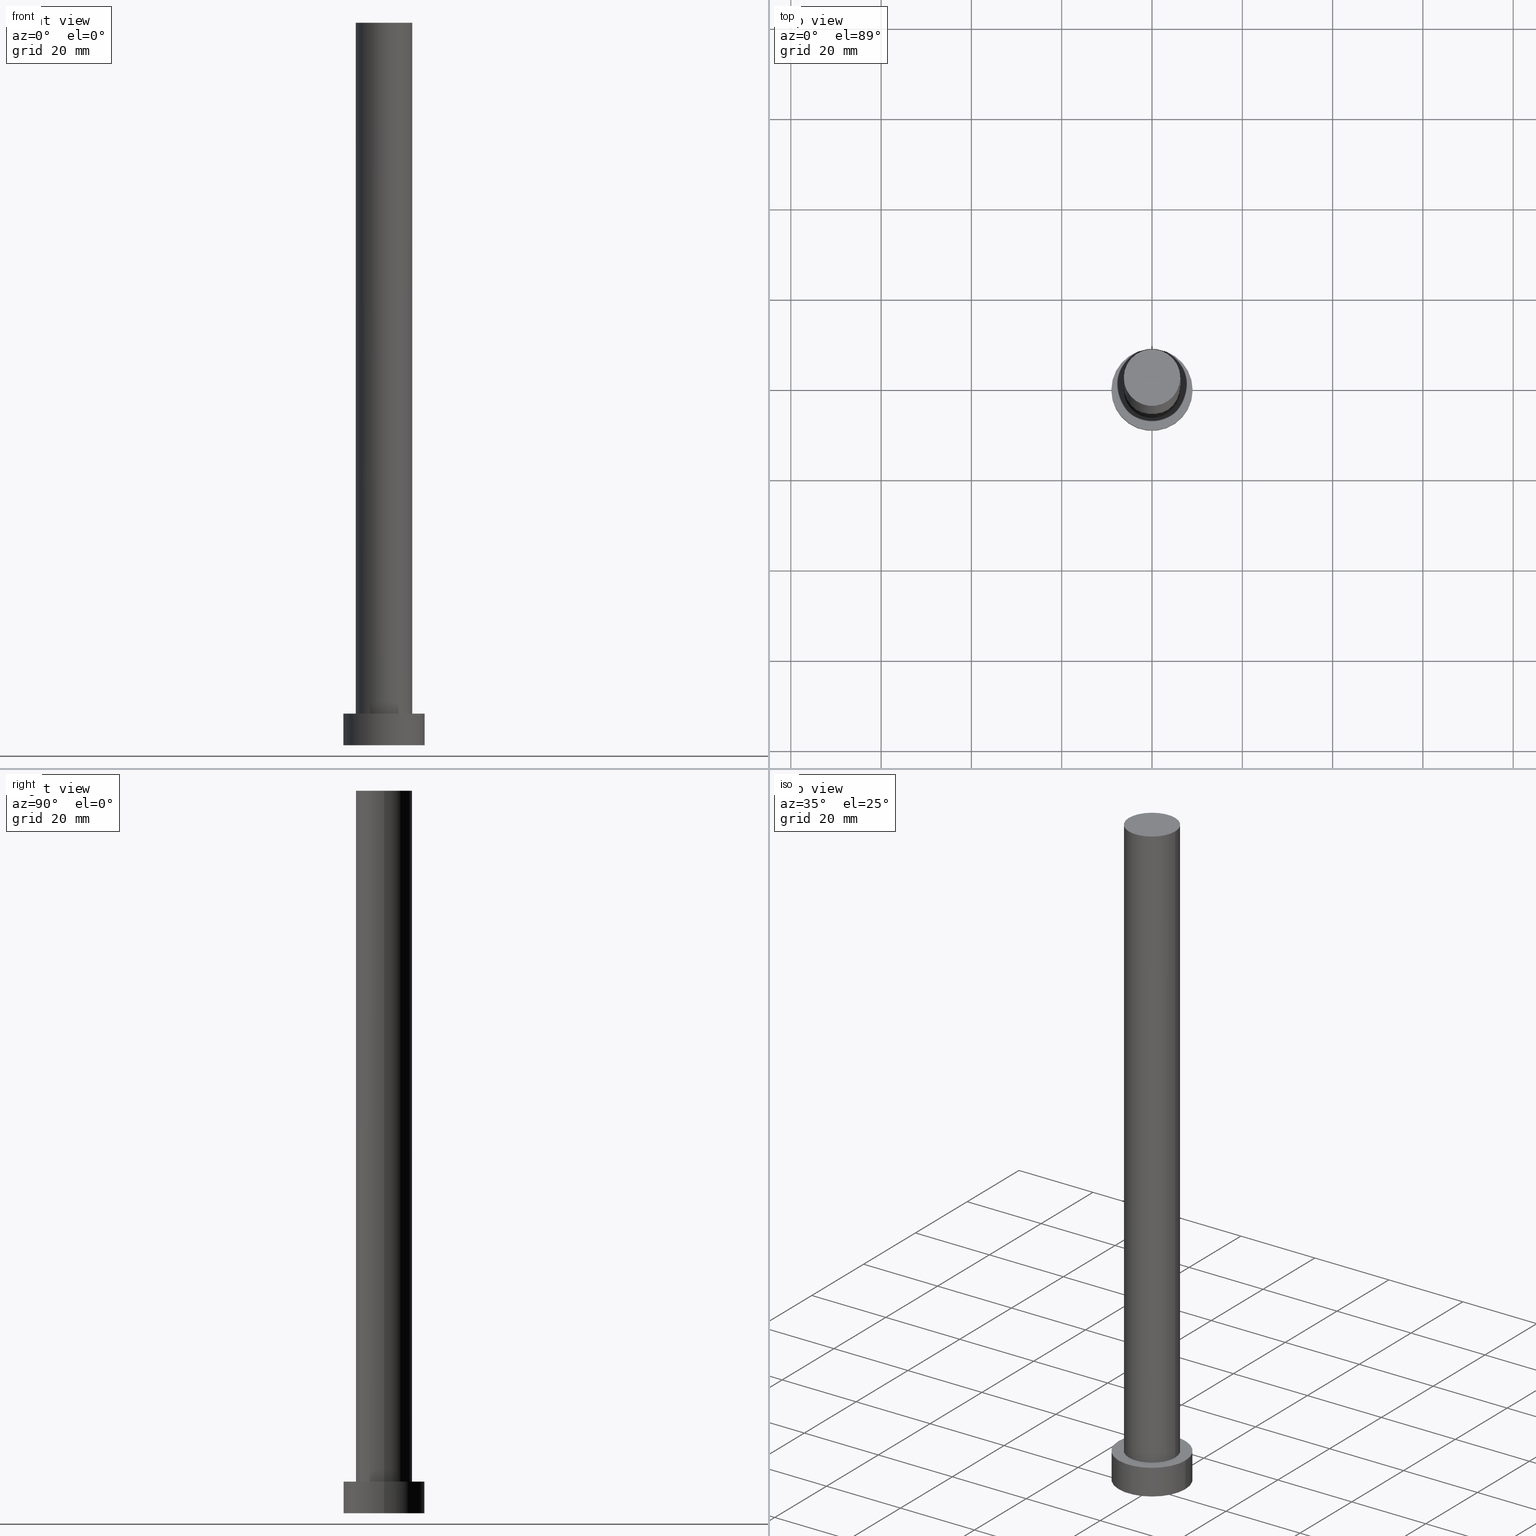
[diagram: canonical four-view strip — front | top / right | iso, engineering-drawing reading convention]
A machine part, canonical four-view strip (front | top / right | iso — engineering-drawing reading convention). The complete STEP part file that produces these views, byte-faithful:
ISO-10303-21;
HEADER;
FILE_DESCRIPTION (( 'STEP AP203' ),
    '1' );
FILE_NAME ('4c8a.STEP',
    '2023-02-12T10:55:30',
    ( '' ),
    ( '' ),
    'SwSTEP 2.0',
    'SolidWorks 2019',
    '' );
FILE_SCHEMA (( 'CONFIG_CONTROL_DESIGN' ));
ENDSEC;

DATA;
#1 = EDGE_CURVE ( 'NONE', #211, #230, #2, .T. ) ;
#2 = CIRCLE ( 'NONE', #23, 6.250000000000000000 ) ;
#3 = DIRECTION ( 'NONE',  ( -0.000000000000000000, -0.000000000000000000, -1.000000000000000000 ) ) ;
#4 = DIRECTION ( 'NONE',  ( -0.000000000000000000, -0.000000000000000000, -1.000000000000000000 ) ) ;
#5 = FACE_OUTER_BOUND ( 'NONE', #35, .T. ) ;
#6 = SHAPE_DEFINITION_REPRESENTATION ( #171, #196 ) ;
#7 = DATE_TIME_ROLE ( 'classification_date' ) ;
#8 = EDGE_CURVE ( 'NONE', #63, #89, #39, .T. ) ;
#9 = PERSON_AND_ORGANIZATION ( #158, #199 ) ;
#10 = DIRECTION ( 'NONE',  ( 1.000000000000000000, 0.000000000000000000, 0.000000000000000000 ) ) ;
#11 = CARTESIAN_POINT ( 'NONE',  ( 0.000000000000000000, 0.000000000000000000, 7.000000000000000000 ) ) ;
#12 = LOCAL_TIME ( 11, 55, 30.00000000000000000, #122 ) ;
#13 = CYLINDRICAL_SURFACE ( 'NONE', #43, 9.000000000000000000 ) ;
#14 = ORIENTED_EDGE ( 'NONE', *, *, #164, .T. ) ;
#15 = ORIENTED_EDGE ( 'NONE', *, *, #203, .T. ) ;
#16 = PRODUCT_DEFINITION_FORMATION_WITH_SPECIFIED_SOURCE ( 'LIBOVOLN�', '', #217, .NOT_KNOWN. ) ;
#17 = COORDINATED_UNIVERSAL_TIME_OFFSET ( 1, 0, .AHEAD. ) ;
#18 = APPROVAL_STATUS ( 'not_yet_approved' ) ;
#19 = DATE_TIME_ROLE ( 'creation_date' ) ;
#20 = CC_DESIGN_APPROVAL ( #200, ( #127 ) ) ;
#21 = CARTESIAN_POINT ( 'NONE',  ( 0.000000000000000000, 0.000000000000000000, 160.0000000000000000 ) ) ;
#22 = MANIFOLD_SOLID_BREP ( 'P�idat vysunut�m3', #118 ) ;
#23 = AXIS2_PLACEMENT_3D ( 'NONE', #236, #41, #191 ) ;
#24 = EDGE_LOOP ( 'NONE', ( #251, #68, #54, #80 ) ) ;
#25 = DIRECTION ( 'NONE',  ( -0.000000000000000000, -0.000000000000000000, -1.000000000000000000 ) ) ;
#26 = ADVANCED_FACE ( 'NONE', ( #111 ), #232, .T. ) ;
#27 = EDGE_CURVE ( 'NONE', #183, #52, #145, .T. ) ;
#28 = LINE ( 'NONE', #227, #153 ) ;
#29 = AXIS2_PLACEMENT_3D ( 'NONE', #182, #207, #106 ) ;
#30 = DIRECTION ( 'NONE',  ( 0.000000000000000000, 0.000000000000000000, 1.000000000000000000 ) ) ;
#31 = DIRECTION ( 'NONE',  ( 0.000000000000000000, 0.000000000000000000, 1.000000000000000000 ) ) ;
#32 = ORIENTED_EDGE ( 'NONE', *, *, #144, .F. ) ;
#33 = DIRECTION ( 'NONE',  ( -0.000000000000000000, -0.000000000000000000, -1.000000000000000000 ) ) ;
#34 = FACE_OUTER_BOUND ( 'NONE', #69, .T. ) ;
#35 = EDGE_LOOP ( 'NONE', ( #193, #146, #81, #142 ) ) ;
#36 = AXIS2_PLACEMENT_3D ( 'NONE', #11, #46, #104 ) ;
#37 = EDGE_CURVE ( 'NONE', #230, #211, #136, .T. ) ;
#38 = APPLICATION_PROTOCOL_DEFINITION ( 'international standard', 'config_control_design', 1994, #149 ) ;
#39 = LINE ( 'NONE', #169, #45 ) ;
#40 = AXIS2_PLACEMENT_3D ( 'NONE', #152, #42, #56 ) ;
#41 = DIRECTION ( 'NONE',  ( 0.000000000000000000, 0.000000000000000000, 1.000000000000000000 ) ) ;
#42 = DIRECTION ( 'NONE',  ( 0.000000000000000000, 0.000000000000000000, 1.000000000000000000 ) ) ;
#43 = AXIS2_PLACEMENT_3D ( 'NONE', #77, #25, #241 ) ;
#44 = PERSON_AND_ORGANIZATION_ROLE ( 'classification_officer' ) ;
#45 = VECTOR ( 'NONE', #4, 1000.000000000000000 ) ;
#46 = DIRECTION ( 'NONE',  ( 0.000000000000000000, 0.000000000000000000, 1.000000000000000000 ) ) ;
#47 = ORIENTED_EDGE ( 'NONE', *, *, #37, .F. ) ;
#48 = APPROVAL ( #86, 'NEUR�EN�' ) ;
#49 = CC_DESIGN_APPROVAL ( #48, ( #134 ) ) ;
#50 = AXIS2_PLACEMENT_3D ( 'NONE', #51, #214, #105 ) ;
#51 = CARTESIAN_POINT ( 'NONE',  ( 0.000000000000000000, 0.000000000000000000, 0.000000000000000000 ) ) ;
#52 = VERTEX_POINT ( 'NONE', #244 ) ;
#53 = PERSON_AND_ORGANIZATION_ROLE ( 'creator' ) ;
#54 = ORIENTED_EDGE ( 'NONE', *, *, #1, .T. ) ;
#55 = EDGE_CURVE ( 'NONE', #89, #185, #221, .T. ) ;
#56 = DIRECTION ( 'NONE',  ( 1.000000000000000000, 0.000000000000000000, 0.000000000000000000 ) ) ;
#57 = AXIS2_PLACEMENT_3D ( 'NONE', #64, #121, #141 ) ;
#58 = LINE ( 'NONE', #116, #172 ) ;
#59 = FACE_OUTER_BOUND ( 'NONE', #245, .T. ) ;
#60 = ORIENTED_EDGE ( 'NONE', *, *, #144, .T. ) ;
#61 = PLANE ( 'NONE',  #98 ) ;
#62 = DIRECTION ( 'NONE',  ( 0.000000000000000000, 0.000000000000000000, 1.000000000000000000 ) ) ;
#63 = VERTEX_POINT ( 'NONE', #228 ) ;
#64 = CARTESIAN_POINT ( 'NONE',  ( 0.000000000000000000, 0.000000000000000000, 0.000000000000000000 ) ) ;
#65 = CC_DESIGN_DATE_AND_TIME_ASSIGNMENT ( #190, #19, ( #134 ) ) ;
#66 = ORIENTED_EDGE ( 'NONE', *, *, #223, .T. ) ;
#67 = AXIS2_PLACEMENT_3D ( 'NONE', #225, #229, #10 ) ;
#68 = ORIENTED_EDGE ( 'NONE', *, *, #233, .T. ) ;
#69 = EDGE_LOOP ( 'NONE', ( #249, #194, #14, #60 ) ) ;
#70 = APPROVAL_DATE_TIME ( #71, #184 ) ;
#71 = DATE_AND_TIME ( #90, #150 ) ;
#72 = CIRCLE ( 'NONE', #140, 9.000000000000000000 ) ;
#73 = APPROVAL_PERSON_ORGANIZATION ( #173, #200, #239 ) ;
#74 = DIRECTION ( 'NONE',  ( -1.000000000000000000, 0.000000000000000000, 0.000000000000000000 ) ) ;
#75 = CARTESIAN_POINT ( 'NONE',  ( -9.000000000000000000, 0.000000000000000000, 0.000000000000000000 ) ) ;
#76 = DATE_AND_TIME ( #220, #12 ) ;
#77 = CARTESIAN_POINT ( 'NONE',  ( 0.000000000000000000, 0.000000000000000000, 7.000000000000000000 ) ) ;
#78 = CALENDAR_DATE ( 2023, 12, 2 ) ;
#79 = LOCAL_TIME ( 11, 55, 30.00000000000000000, #17 ) ;
#80 = ORIENTED_EDGE ( 'NONE', *, *, #223, .F. ) ;
#81 = ORIENTED_EDGE ( 'NONE', *, *, #55, .T. ) ;
#82 = FACE_BOUND ( 'NONE', #188, .T. ) ;
#83 =( NAMED_UNIT ( * ) SI_UNIT ( $, .STERADIAN. ) SOLID_ANGLE_UNIT ( ) );
#84 = FACE_OUTER_BOUND ( 'NONE', #103, .T. ) ;
#85 = MECHANICAL_CONTEXT ( 'NONE', #149, 'mechanical' ) ;
#86 = APPROVAL_STATUS ( 'not_yet_approved' ) ;
#87 = ADVANCED_FACE ( 'NONE', ( #82, #84 ), #125, .T. ) ;
#88 = PERSON_AND_ORGANIZATION ( #158, #199 ) ;
#89 = VERTEX_POINT ( 'NONE', #155 ) ;
#90 = CALENDAR_DATE ( 2023, 12, 2 ) ;
#91 = CC_DESIGN_PERSON_AND_ORGANIZATION_ASSIGNMENT ( #9, #224, ( #16 ) ) ;
#92 = AXIS2_PLACEMENT_3D ( 'NONE', #21, #96, #240 ) ;
#93 = CARTESIAN_POINT ( 'NONE',  ( 0.000000000000000000, 0.000000000000000000, 7.000000000000000000 ) ) ;
#94 = VERTEX_POINT ( 'NONE', #161 ) ;
#95 = CIRCLE ( 'NONE', #67, 9.000000000000000000 ) ;
#96 = DIRECTION ( 'NONE',  ( -0.000000000000000000, -0.000000000000000000, -1.000000000000000000 ) ) ;
#97 = DATE_AND_TIME ( #78, #234 ) ;
#98 = AXIS2_PLACEMENT_3D ( 'NONE', #243, #30, #101 ) ;
#99 = CC_DESIGN_DATE_AND_TIME_ASSIGNMENT ( #97, #7, ( #127 ) ) ;
#100 = CARTESIAN_POINT ( 'NONE',  ( -6.250000000000000000, 0.000000000000000000, 160.0000000000000000 ) ) ;
#101 = DIRECTION ( 'NONE',  ( 1.000000000000000000, 0.000000000000000000, -0.000000000000000000 ) ) ;
#102 = FACE_OUTER_BOUND ( 'NONE', #130, .T. ) ;
#103 = EDGE_LOOP ( 'NONE', ( #129, #115 ) ) ;
#104 = DIRECTION ( 'NONE',  ( 1.000000000000000000, 0.000000000000000000, 0.000000000000000000 ) ) ;
#105 = DIRECTION ( 'NONE',  ( 1.000000000000000000, 0.000000000000000000, 0.000000000000000000 ) ) ;
#106 = DIRECTION ( 'NONE',  ( 1.000000000000000000, 0.000000000000000000, 0.000000000000000000 ) ) ;
#107 = ORIENTED_EDGE ( 'NONE', *, *, #37, .T. ) ;
#108 = PRODUCT_RELATED_PRODUCT_CATEGORY ( 'detail', '', ( #217 ) ) ;
#109 = APPLICATION_CONTEXT ( 'configuration controlled 3d designs of mechanical parts and assemblies' ) ;
#110 = CALENDAR_DATE ( 2023, 12, 2 ) ;
#111 = FACE_OUTER_BOUND ( 'NONE', #24, .T. ) ;
#112 = PERSON_AND_ORGANIZATION ( #158, #199 ) ;
#113 = CIRCLE ( 'NONE', #40, 6.250000000000000000 ) ;
#114 = ADVANCED_FACE ( 'NONE', ( #59 ), #187, .T. ) ;
#115 = ORIENTED_EDGE ( 'NONE', *, *, #252, .T. ) ;
#116 = CARTESIAN_POINT ( 'NONE',  ( -9.000000000000000000, 0.000000000000000000, 7.000000000000000000 ) ) ;
#117 = APPROVAL_PERSON_ORGANIZATION ( #112, #184, #168 ) ;
#118 = CLOSED_SHELL ( 'NONE', ( #26, #170, #151, #87, #242, #114, #237 ) ) ;
#119 = EDGE_CURVE ( 'NONE', #94, #63, #198, .T. ) ;
#120 = APPROVAL_PERSON_ORGANIZATION ( #167, #48, #189 ) ;
#121 = DIRECTION ( 'NONE',  ( 0.000000000000000000, 0.000000000000000000, 1.000000000000000000 ) ) ;
#122 = COORDINATED_UNIVERSAL_TIME_OFFSET ( 1, 0, .AHEAD. ) ;
#123 = DIRECTION ( 'NONE',  ( 1.000000000000000000, 0.000000000000000000, -0.000000000000000000 ) ) ;
#124 = DIRECTION ( 'NONE',  ( 1.000000000000000000, 0.000000000000000000, 0.000000000000000000 ) ) ;
#125 = PLANE ( 'NONE',  #204 ) ;
#126 = DIRECTION ( 'NONE',  ( -1.000000000000000000, 0.000000000000000000, 0.000000000000000000 ) ) ;
#127 = SECURITY_CLASSIFICATION ( '', '', #180 ) ;
#128 = PERSON_AND_ORGANIZATION_ROLE ( 'creator' ) ;
#129 = ORIENTED_EDGE ( 'NONE', *, *, #119, .T. ) ;
#130 = EDGE_LOOP ( 'NONE', ( #32, #166 ) ) ;
#131 = DIRECTION ( 'NONE',  ( -0.000000000000000000, -0.000000000000000000, -1.000000000000000000 ) ) ;
#132 = AXIS2_PLACEMENT_3D ( 'NONE', #212, #62, #124 ) ;
#133 = CARTESIAN_POINT ( 'NONE',  ( 6.250000000000000000, 7.654042494670957606E-16, 7.000000000000000000 ) ) ;
#134 = PRODUCT_DEFINITION ( 'NEZN�M�', '', #16, #213 ) ;
#135 = CC_DESIGN_PERSON_AND_ORGANIZATION_ASSIGNMENT ( #235, #53, ( #16 ) ) ;
#136 = CIRCLE ( 'NONE', #29, 6.250000000000000000 ) ;
#137 = APPROVAL_STATUS ( 'not_yet_approved' ) ;
#138 = CYLINDRICAL_SURFACE ( 'NONE', #192, 9.000000000000000000 ) ;
#139 = CARTESIAN_POINT ( 'NONE',  ( 0.000000000000000000, 0.000000000000000000, 160.0000000000000000 ) ) ;
#140 = AXIS2_PLACEMENT_3D ( 'NONE', #210, #157, #179 ) ;
#141 = DIRECTION ( 'NONE',  ( 1.000000000000000000, 0.000000000000000000, 0.000000000000000000 ) ) ;
#142 = ORIENTED_EDGE ( 'NONE', *, *, #164, .F. ) ;
#143 = DIRECTION ( 'NONE',  ( 0.000000000000000000, 0.000000000000000000, 1.000000000000000000 ) ) ;
#144 = EDGE_CURVE ( 'NONE', #185, #89, #72, .T. ) ;
#145 = CIRCLE ( 'NONE', #132, 6.250000000000000000 ) ;
#146 = ORIENTED_EDGE ( 'NONE', *, *, #8, .T. ) ;
#147 = PERSON_AND_ORGANIZATION ( #158, #199 ) ;
#148 = DATE_AND_TIME ( #216, #79 ) ;
#149 = APPLICATION_CONTEXT ( 'configuration controlled 3d designs of mechanical parts and assemblies' ) ;
#150 = LOCAL_TIME ( 11, 55, 30.00000000000000000, #254 ) ;
#151 = ADVANCED_FACE ( 'NONE', ( #34 ), #13, .T. ) ;
#152 = CARTESIAN_POINT ( 'NONE',  ( 0.000000000000000000, 0.000000000000000000, 160.0000000000000000 ) ) ;
#153 = VECTOR ( 'NONE', #33, 1000.000000000000000 ) ;
#154 = AXIS2_PLACEMENT_3D ( 'NONE', #139, #177, #126 ) ;
#155 = CARTESIAN_POINT ( 'NONE',  ( 9.000000000000000000, 1.102182119232617714E-15, 0.000000000000000000 ) ) ;
#156 = VECTOR ( 'NONE', #181, 1000.000000000000000 ) ;
#157 = DIRECTION ( 'NONE',  ( 0.000000000000000000, 0.000000000000000000, 1.000000000000000000 ) ) ;
#158 = PERSON ( 'NEUR�EN�', 'NEUR�EN�', 'NEUR�EN�', ('NEUR�EN�'), ('NEUR�EN�'), ('NEUR�EN�') ) ;
#159 = ORIENTED_EDGE ( 'NONE', *, *, #1, .F. ) ;
#160 = FACE_OUTER_BOUND ( 'NONE', #247, .T. ) ;
#161 = CARTESIAN_POINT ( 'NONE',  ( -9.000000000000000000, 0.000000000000000000, 7.000000000000000000 ) ) ;
#162 = ORIENTED_EDGE ( 'NONE', *, *, #27, .F. ) ;
#163 =( GEOMETRIC_REPRESENTATION_CONTEXT ( 3 ) GLOBAL_UNCERTAINTY_ASSIGNED_CONTEXT ( ( #219 ) ) GLOBAL_UNIT_ASSIGNED_CONTEXT ( ( #206, #209, #83 ) ) REPRESENTATION_CONTEXT ( 'NONE', 'WORKASPACE' ) );
#164 = EDGE_CURVE ( 'NONE', #94, #185, #58, .T. ) ;
#165 = APPLICATION_PROTOCOL_DEFINITION ( 'international standard', 'config_control_design', 1994, #109 ) ;
#166 = ORIENTED_EDGE ( 'NONE', *, *, #55, .F. ) ;
#167 = PERSON_AND_ORGANIZATION ( #158, #199 ) ;
#168 = APPROVAL_ROLE ( '' ) ;
#169 = CARTESIAN_POINT ( 'NONE',  ( 9.000000000000000000, 1.102182119232617714E-15, 7.000000000000000000 ) ) ;
#170 = ADVANCED_FACE ( 'NONE', ( #5 ), #138, .T. ) ;
#171 = PRODUCT_DEFINITION_SHAPE ( 'NONE', 'NONE',  #134 ) ;
#172 = VECTOR ( 'NONE', #131, 1000.000000000000000 ) ;
#173 = PERSON_AND_ORGANIZATION ( #158, #199 ) ;
#174 = CARTESIAN_POINT ( 'NONE',  ( 0.000000000000000000, 0.000000000000000000, 0.000000000000000000 ) ) ;
#175 = COORDINATED_UNIVERSAL_TIME_OFFSET ( 1, 0, .AHEAD. ) ;
#176 = PLANE ( 'NONE',  #255 ) ;
#177 = DIRECTION ( 'NONE',  ( -0.000000000000000000, -0.000000000000000000, -1.000000000000000000 ) ) ;
#178 = CC_DESIGN_PERSON_AND_ORGANIZATION_ASSIGNMENT ( #88, #231, ( #217 ) ) ;
#179 = DIRECTION ( 'NONE',  ( 1.000000000000000000, 0.000000000000000000, 0.000000000000000000 ) ) ;
#180 = SECURITY_CLASSIFICATION_LEVEL ( 'unclassified' ) ;
#181 = DIRECTION ( 'NONE',  ( -0.000000000000000000, -0.000000000000000000, -1.000000000000000000 ) ) ;
#182 = CARTESIAN_POINT ( 'NONE',  ( 0.000000000000000000, 0.000000000000000000, 7.000000000000000000 ) ) ;
#183 = VERTEX_POINT ( 'NONE', #195 ) ;
#184 = APPROVAL ( #18, 'NEUR�EN�' ) ;
#185 = VERTEX_POINT ( 'NONE', #75 ) ;
#186 = CC_DESIGN_APPROVAL ( #184, ( #16 ) ) ;
#187 = CYLINDRICAL_SURFACE ( 'NONE', #154, 6.250000000000000000 ) ;
#188 = EDGE_LOOP ( 'NONE', ( #47, #159 ) ) ;
#189 = APPROVAL_ROLE ( '' ) ;
#190 = DATE_AND_TIME ( #110, #218 ) ;
#191 = DIRECTION ( 'NONE',  ( 1.000000000000000000, 0.000000000000000000, 0.000000000000000000 ) ) ;
#192 = AXIS2_PLACEMENT_3D ( 'NONE', #93, #3, #74 ) ;
#193 = ORIENTED_EDGE ( 'NONE', *, *, #252, .F. ) ;
#194 = ORIENTED_EDGE ( 'NONE', *, *, #119, .F. ) ;
#195 = CARTESIAN_POINT ( 'NONE',  ( -6.250000000000000000, 0.000000000000000000, 160.0000000000000000 ) ) ;
#196 = ADVANCED_BREP_SHAPE_REPRESENTATION ( '4c8a', ( #22, #50 ), #163 ) ;
#197 = PERSON_AND_ORGANIZATION ( #158, #199 ) ;
#198 = CIRCLE ( 'NONE', #36, 9.000000000000000000 ) ;
#199 = ORGANIZATION ( 'NEUR�EN�', 'NEUR�EN�', '' ) ;
#200 = APPROVAL ( #137, 'NEUR�EN�' ) ;
#201 = APPROVAL_DATE_TIME ( #76, #200 ) ;
#202 = CARTESIAN_POINT ( 'NONE',  ( 0.000000000000000000, 0.000000000000000000, 7.000000000000000000 ) ) ;
#203 = EDGE_CURVE ( 'NONE', #52, #183, #113, .T. ) ;
#204 = AXIS2_PLACEMENT_3D ( 'NONE', #202, #31, #205 ) ;
#205 = DIRECTION ( 'NONE',  ( 1.000000000000000000, 0.000000000000000000, -0.000000000000000000 ) ) ;
#206 =( LENGTH_UNIT ( ) NAMED_UNIT ( * ) SI_UNIT ( .MILLI., .METRE. ) );
#207 = DIRECTION ( 'NONE',  ( 0.000000000000000000, 0.000000000000000000, 1.000000000000000000 ) ) ;
#208 = CC_DESIGN_PERSON_AND_ORGANIZATION_ASSIGNMENT ( #147, #128, ( #134 ) ) ;
#209 =( NAMED_UNIT ( * ) PLANE_ANGLE_UNIT ( ) SI_UNIT ( $, .RADIAN. ) );
#210 = CARTESIAN_POINT ( 'NONE',  ( 0.000000000000000000, 0.000000000000000000, 0.000000000000000000 ) ) ;
#211 = VERTEX_POINT ( 'NONE', #133 ) ;
#212 = CARTESIAN_POINT ( 'NONE',  ( 0.000000000000000000, 0.000000000000000000, 160.0000000000000000 ) ) ;
#213 = DESIGN_CONTEXT ( 'detailed design', #109, 'design' ) ;
#214 = DIRECTION ( 'NONE',  ( 0.000000000000000000, 0.000000000000000000, 1.000000000000000000 ) ) ;
#215 = COORDINATED_UNIVERSAL_TIME_OFFSET ( 1, 0, .AHEAD. ) ;
#216 = CALENDAR_DATE ( 2023, 12, 2 ) ;
#217 = PRODUCT ( '4c8a', '4c8a', '', ( #85 ) ) ;
#218 = LOCAL_TIME ( 11, 55, 30.00000000000000000, #215 ) ;
#219 = UNCERTAINTY_MEASURE_WITH_UNIT (LENGTH_MEASURE( 1.000000000000000082E-05 ), #206, 'distance_accuracy_value', 'NONE');
#220 = CALENDAR_DATE ( 2023, 12, 2 ) ;
#221 = CIRCLE ( 'NONE', #57, 9.000000000000000000 ) ;
#222 = CC_DESIGN_SECURITY_CLASSIFICATION ( #127, ( #16 ) ) ;
#223 = EDGE_CURVE ( 'NONE', #183, #230, #246, .T. ) ;
#224 = PERSON_AND_ORGANIZATION_ROLE ( 'design_supplier' ) ;
#225 = CARTESIAN_POINT ( 'NONE',  ( 0.000000000000000000, 0.000000000000000000, 7.000000000000000000 ) ) ;
#226 = ORIENTED_EDGE ( 'NONE', *, *, #27, .T. ) ;
#227 = CARTESIAN_POINT ( 'NONE',  ( 6.250000000000000000, 7.654042494670957606E-16, 160.0000000000000000 ) ) ;
#228 = CARTESIAN_POINT ( 'NONE',  ( 9.000000000000000000, 1.102182119232617714E-15, 7.000000000000000000 ) ) ;
#229 = DIRECTION ( 'NONE',  ( 0.000000000000000000, 0.000000000000000000, 1.000000000000000000 ) ) ;
#230 = VERTEX_POINT ( 'NONE', #248 ) ;
#231 = PERSON_AND_ORGANIZATION_ROLE ( 'design_owner' ) ;
#232 = CYLINDRICAL_SURFACE ( 'NONE', #92, 6.250000000000000000 ) ;
#233 = EDGE_CURVE ( 'NONE', #52, #211, #28, .T. ) ;
#234 = LOCAL_TIME ( 11, 55, 30.00000000000000000, #175 ) ;
#235 = PERSON_AND_ORGANIZATION ( #158, #199 ) ;
#236 = CARTESIAN_POINT ( 'NONE',  ( 0.000000000000000000, 0.000000000000000000, 7.000000000000000000 ) ) ;
#237 = ADVANCED_FACE ( 'NONE', ( #160 ), #61, .T. ) ;
#238 = CC_DESIGN_PERSON_AND_ORGANIZATION_ASSIGNMENT ( #197, #44, ( #127 ) ) ;
#239 = APPROVAL_ROLE ( '' ) ;
#240 = DIRECTION ( 'NONE',  ( -1.000000000000000000, 0.000000000000000000, 0.000000000000000000 ) ) ;
#241 = DIRECTION ( 'NONE',  ( -1.000000000000000000, 0.000000000000000000, 0.000000000000000000 ) ) ;
#242 = ADVANCED_FACE ( 'NONE', ( #102 ), #176, .F. ) ;
#243 = CARTESIAN_POINT ( 'NONE',  ( 0.000000000000000000, 0.000000000000000000, 160.0000000000000000 ) ) ;
#244 = CARTESIAN_POINT ( 'NONE',  ( 6.250000000000000000, 7.654042494670957606E-16, 160.0000000000000000 ) ) ;
#245 = EDGE_LOOP ( 'NONE', ( #250, #162, #66, #107 ) ) ;
#246 = LINE ( 'NONE', #100, #156 ) ;
#247 = EDGE_LOOP ( 'NONE', ( #226, #15 ) ) ;
#248 = CARTESIAN_POINT ( 'NONE',  ( -6.250000000000000000, 0.000000000000000000, 7.000000000000000000 ) ) ;
#249 = ORIENTED_EDGE ( 'NONE', *, *, #8, .F. ) ;
#250 = ORIENTED_EDGE ( 'NONE', *, *, #233, .F. ) ;
#251 = ORIENTED_EDGE ( 'NONE', *, *, #203, .F. ) ;
#252 = EDGE_CURVE ( 'NONE', #63, #94, #95, .T. ) ;
#253 = APPROVAL_DATE_TIME ( #148, #48 ) ;
#254 = COORDINATED_UNIVERSAL_TIME_OFFSET ( 1, 0, .AHEAD. ) ;
#255 = AXIS2_PLACEMENT_3D ( 'NONE', #174, #143, #123 ) ;
ENDSEC;
END-ISO-10303-21;
